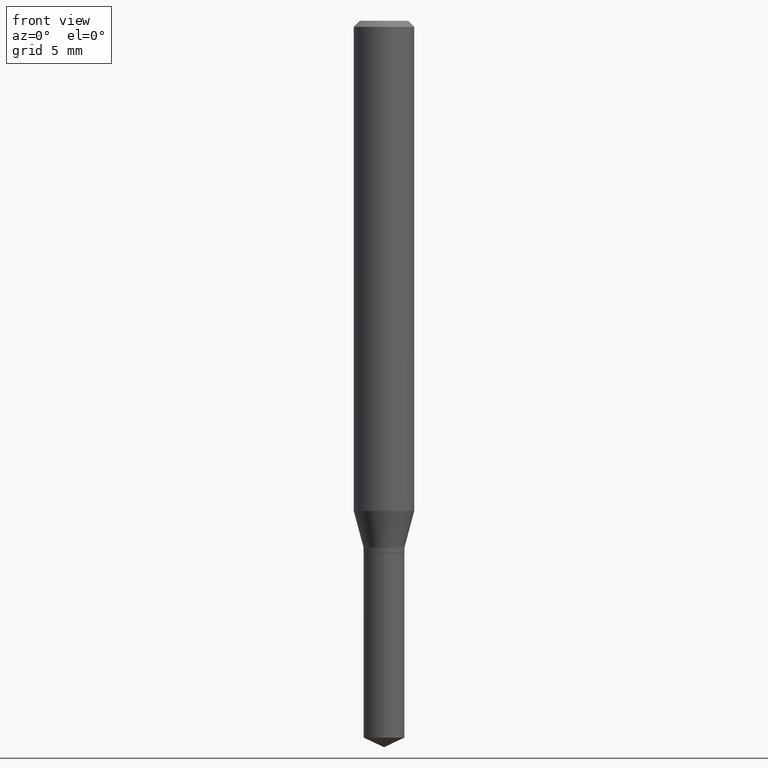
[diagram: clean part render]
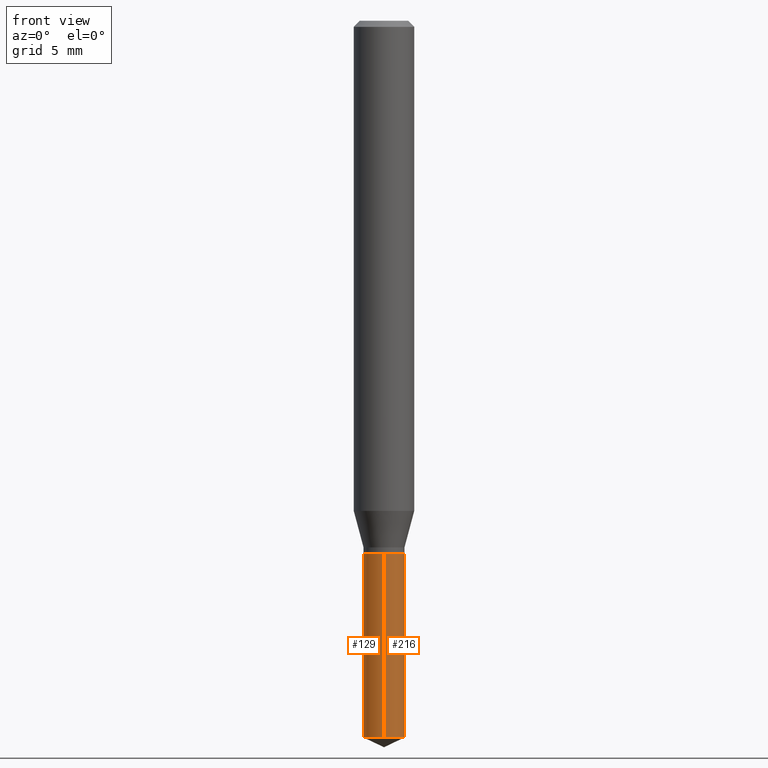
[diagram: same view with one multi-face feature highlighted, each face labeled with its STEP entity id]
A machine part, front view. The highlighted faces form ONE feature: a constant-radius fillet chain: 2 tangent blend faces with common blend radius 1.0744 mm. The faces share edges in the B-rep.
Their STEP definitions:
[1] entity #216 (Cylinder):
#54 = EDGE_LOOP ( 'NONE', ( #203, #64, #111, #257 ) ) ;
#59 = FACE_OUTER_BOUND ( 'NONE', #54, .T. ) ;
#63 = CIRCLE ( 'NONE', #475, 0.04229999999999999732 ) ;
#64 = ORIENTED_EDGE ( 'NONE', *, *, #459, .T. ) ;
#101 = CARTESIAN_POINT ( 'NONE',  ( -2.953793212660927659E-16, -0.04230000000000515986, -1.480275186060043158 ) ) ;
#111 = ORIENTED_EDGE ( 'NONE', *, *, #120, .F. ) ;
#120 = EDGE_CURVE ( 'NONE', #208, #340, #63, .T. ) ;
#135 = CARTESIAN_POINT ( 'NONE',  ( -2.953793212661021829E-16, -0.04230000000000384147, -1.099999999999999867 ) ) ;
#136 = CARTESIAN_POINT ( 'NONE',  ( 3.005595772265491809E-16, 0.04229999999999616012, -1.100000000000000089 ) ) ;
#154 = EDGE_CURVE ( 'NONE', #458, #293, #428, .T. ) ;
#157 = AXIS2_PLACEMENT_3D ( 'NONE', #277, #469, #432 ) ;
#184 = LINE ( 'NONE', #136, #379 ) ;
#190 = DIRECTION ( 'NONE',  ( -6.982962677686266711E-15, -1.000000000000000000, 3.229134744283999085E-15 ) ) ;
#197 = LINE ( 'NONE', #135, #345 ) ;
#203 = ORIENTED_EDGE ( 'NONE', *, *, #154, .T. ) ;
#207 = DIRECTION ( 'NONE',  ( -2.445399690415121530E-29, 3.491580316559632610E-15, 1.000000000000000000 ) ) ;
#208 = VERTEX_POINT ( 'NONE', #372 ) ;
#216 = ADVANCED_FACE ( 'NONE', ( #59 ), #479, .T. ) ;
#252 = DIRECTION ( 'NONE',  ( -6.982962677686266711E-15, -1.000000000000000000, 3.229134744283999085E-15 ) ) ;
#257 = ORIENTED_EDGE ( 'NONE', *, *, #262, .F. ) ;
#258 = CARTESIAN_POINT ( 'NONE',  ( 3.005595772265585979E-16, 0.04229999999999616012, -1.100000000000000089 ) ) ;
#262 = EDGE_CURVE ( 'NONE', #458, #208, #197, .T. ) ;
#263 = DIRECTION ( 'NONE',  ( -2.445399690415121810E-29, 3.491580316559632610E-15, 1.000000000000000000 ) ) ;
#277 = CARTESIAN_POINT ( 'NONE',  ( 3.619940509067433846E-29, -5.168390827250759204E-15, -1.480275186060043602 ) ) ;
#278 = CARTESIAN_POINT ( 'NONE',  ( 2.690015686803650369E-29, -3.840629472727460101E-15, -1.100000000000000089 ) ) ;
#293 = VERTEX_POINT ( 'NONE', #471 ) ;
#296 = DIRECTION ( 'NONE',  ( -2.445399690415121810E-29, 3.491580316559632610E-15, 1.000000000000000000 ) ) ;
#340 = VERTEX_POINT ( 'NONE', #258 ) ;
#345 = VECTOR ( 'NONE', #296, 39.37007874015748143 ) ;
#372 = CARTESIAN_POINT ( 'NONE',  ( -2.953793212661021829E-16, -0.04230000000000384147, -1.099999999999999867 ) ) ;
#379 = VECTOR ( 'NONE', #263, 39.37007874015748143 ) ;
#406 = CARTESIAN_POINT ( 'NONE',  ( 2.690015686803650369E-29, -3.840629472727460101E-15, -1.100000000000000089 ) ) ;
#428 = CIRCLE ( 'NONE', #157, 0.04229999999999999732 ) ;
#432 = DIRECTION ( 'NONE',  ( -6.982962677686266711E-15, -1.000000000000000000, 6.458269488567998169E-15 ) ) ;
#458 = VERTEX_POINT ( 'NONE', #101 ) ;
#459 = EDGE_CURVE ( 'NONE', #293, #340, #184, .T. ) ;
#460 = AXIS2_PLACEMENT_3D ( 'NONE', #406, #207, #252 ) ;
#464 = DIRECTION ( 'NONE',  ( -2.445399690415121530E-29, 3.491580316559632610E-15, 1.000000000000000000 ) ) ;
#469 = DIRECTION ( 'NONE',  ( -2.445399690415121530E-29, 3.491580316559632610E-15, 1.000000000000000000 ) ) ;
#471 = CARTESIAN_POINT ( 'NONE',  ( 3.005595772265585486E-16, 0.04229999999999482785, -1.480275186060043824 ) ) ;
#475 = AXIS2_PLACEMENT_3D ( 'NONE', #278, #464, #190 ) ;
#479 = CYLINDRICAL_SURFACE ( 'NONE', #460, 0.04229999999999999732 ) ;
[2] entity #129 (Cylinder):
#9 = CARTESIAN_POINT ( 'NONE',  ( 2.690015686803650369E-29, -3.840629472727460101E-15, -1.100000000000000089 ) ) ;
#25 = DIRECTION ( 'NONE',  ( -6.982962677686266711E-15, -1.000000000000000000, 3.229134744283999085E-15 ) ) ;
#57 = DIRECTION ( 'NONE',  ( -2.445399690415121530E-29, 3.491580316559632610E-15, 1.000000000000000000 ) ) ;
#99 = CARTESIAN_POINT ( 'NONE',  ( 2.690015686803650369E-29, -3.840629472727460101E-15, -1.100000000000000089 ) ) ;
#101 = CARTESIAN_POINT ( 'NONE',  ( -2.953793212660927659E-16, -0.04230000000000515986, -1.480275186060043158 ) ) ;
#129 = ADVANCED_FACE ( 'NONE', ( #158 ), #355, .T. ) ;
#134 = AXIS2_PLACEMENT_3D ( 'NONE', #179, #485, #488 ) ;
#135 = CARTESIAN_POINT ( 'NONE',  ( -2.953793212661021829E-16, -0.04230000000000384147, -1.099999999999999867 ) ) ;
#136 = CARTESIAN_POINT ( 'NONE',  ( 3.005595772265491809E-16, 0.04229999999999616012, -1.100000000000000089 ) ) ;
#146 = EDGE_LOOP ( 'NONE', ( #424, #218, #178, #306 ) ) ;
#158 = FACE_OUTER_BOUND ( 'NONE', #146, .T. ) ;
#178 = ORIENTED_EDGE ( 'NONE', *, *, #262, .T. ) ;
#179 = CARTESIAN_POINT ( 'NONE',  ( 3.619940509067433846E-29, -5.168390827250759204E-15, -1.480275186060043602 ) ) ;
#184 = LINE ( 'NONE', #136, #379 ) ;
#193 = DIRECTION ( 'NONE',  ( -6.982962677686266711E-15, -1.000000000000000000, 3.229134744283999085E-15 ) ) ;
#196 = CIRCLE ( 'NONE', #134, 0.04229999999999999732 ) ;
#197 = LINE ( 'NONE', #135, #345 ) ;
#208 = VERTEX_POINT ( 'NONE', #372 ) ;
#218 = ORIENTED_EDGE ( 'NONE', *, *, #357, .T. ) ;
#226 = EDGE_CURVE ( 'NONE', #340, #208, #410, .T. ) ;
#234 = AXIS2_PLACEMENT_3D ( 'NONE', #99, #57, #25 ) ;
#258 = CARTESIAN_POINT ( 'NONE',  ( 3.005595772265585979E-16, 0.04229999999999616012, -1.100000000000000089 ) ) ;
#262 = EDGE_CURVE ( 'NONE', #458, #208, #197, .T. ) ;
#263 = DIRECTION ( 'NONE',  ( -2.445399690415121810E-29, 3.491580316559632610E-15, 1.000000000000000000 ) ) ;
#293 = VERTEX_POINT ( 'NONE', #471 ) ;
#296 = DIRECTION ( 'NONE',  ( -2.445399690415121810E-29, 3.491580316559632610E-15, 1.000000000000000000 ) ) ;
#301 = AXIS2_PLACEMENT_3D ( 'NONE', #9, #391, #193 ) ;
#306 = ORIENTED_EDGE ( 'NONE', *, *, #226, .F. ) ;
#340 = VERTEX_POINT ( 'NONE', #258 ) ;
#345 = VECTOR ( 'NONE', #296, 39.37007874015748143 ) ;
#355 = CYLINDRICAL_SURFACE ( 'NONE', #301, 0.04229999999999999732 ) ;
#357 = EDGE_CURVE ( 'NONE', #293, #458, #196, .T. ) ;
#372 = CARTESIAN_POINT ( 'NONE',  ( -2.953793212661021829E-16, -0.04230000000000384147, -1.099999999999999867 ) ) ;
#379 = VECTOR ( 'NONE', #263, 39.37007874015748143 ) ;
#391 = DIRECTION ( 'NONE',  ( -2.445399690415121530E-29, 3.491580316559632610E-15, 1.000000000000000000 ) ) ;
#410 = CIRCLE ( 'NONE', #234, 0.04229999999999999732 ) ;
#424 = ORIENTED_EDGE ( 'NONE', *, *, #459, .F. ) ;
#458 = VERTEX_POINT ( 'NONE', #101 ) ;
#459 = EDGE_CURVE ( 'NONE', #293, #340, #184, .T. ) ;
#471 = CARTESIAN_POINT ( 'NONE',  ( 3.005595772265585486E-16, 0.04229999999999482785, -1.480275186060043824 ) ) ;
#485 = DIRECTION ( 'NONE',  ( -2.445399690415121530E-29, 3.491580316559632610E-15, 1.000000000000000000 ) ) ;
#488 = DIRECTION ( 'NONE',  ( -6.982962677686266711E-15, -1.000000000000000000, 6.458269488567998169E-15 ) ) ;